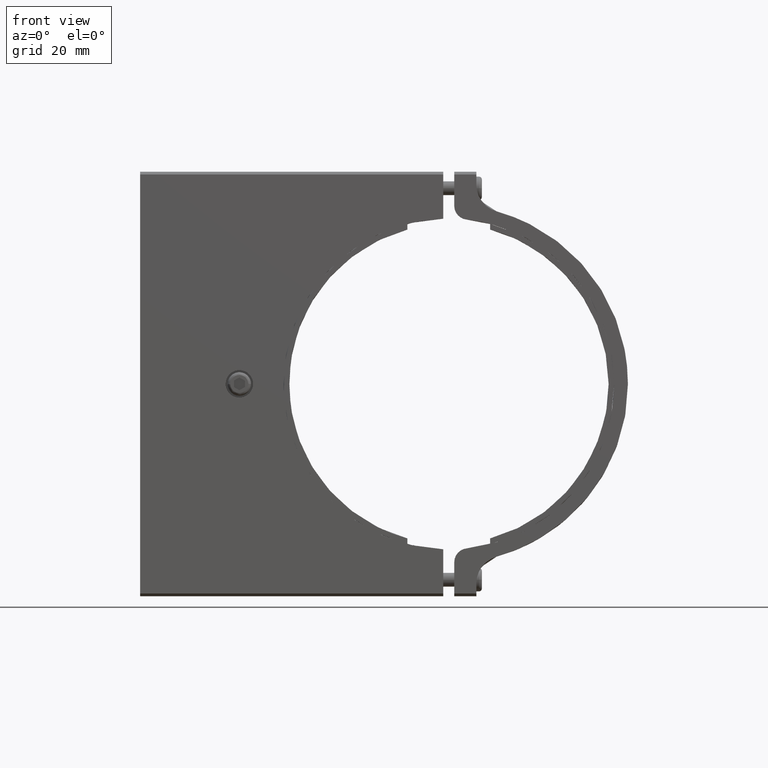
[diagram: clean part render]
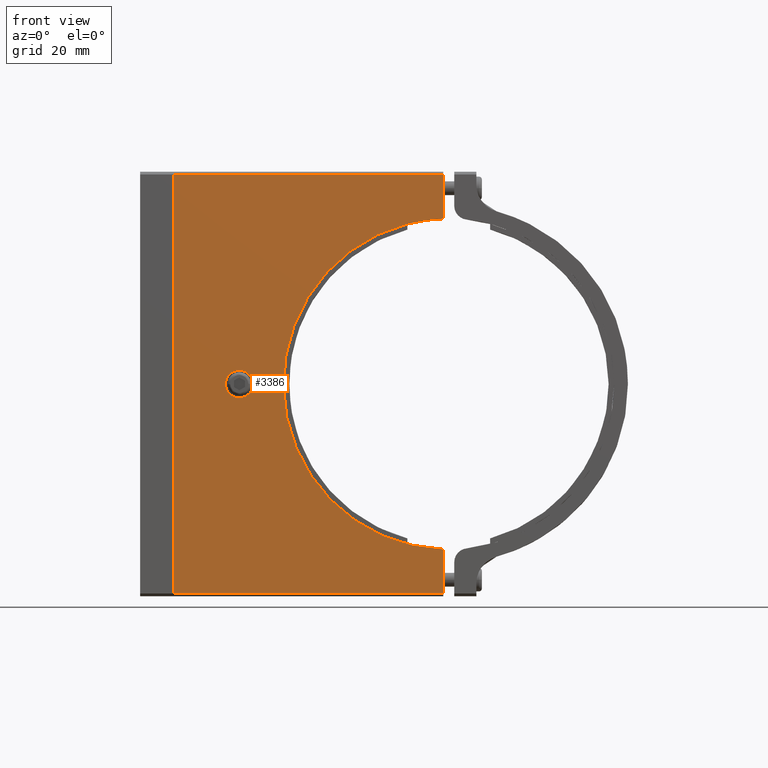
[diagram: same view with one face highlighted and labeled with its STEP entity id]
A machine part, front view. The second image highlights one B-rep face of the part: STEP entity #3386.
In plain terms, the highlighted face is a freeform B-spline surface patch.
Its self-contained STEP definition (entity closure, byte-faithful):
#4 = CARTESIAN_POINT ( 'NONE',  ( 79.17612256400001058, 12.00000000000000178, 56.40179487999999708 ) ) ;
#20 = CARTESIAN_POINT ( 'NONE',  ( 20.00017310199998377, 11.99999999999999822, 3.071240914666662380 ) ) ;
#36 = VERTEX_POINT ( 'NONE', #4983 ) ;
#163 = CARTESIAN_POINT ( 'NONE',  ( 98.00000000000000000, 12.00000000000000000, 75.99999999966210851 ) ) ;
#244 = CARTESIAN_POINT ( 'NONE',  ( 68.78667948133329446, 11.99999999999999822, 51.38603883999997635 ) ) ;
#412 = CARTESIAN_POINT ( 'NONE',  ( 97.99999999753360669, 12.00000000000000000, 59.96665740667099698 ) ) ;
#449 = CARTESIAN_POINT ( 'NONE',  ( 98.00000000000000000, 12.00000000000000000, -75.99999999966210851 ) ) ;
#452 = EDGE_CURVE ( 'NONE', #5583, #918, #5427, .T. ) ;
#545 = CARTESIAN_POINT ( 'NONE',  ( 97.99999999753360669, 12.00000000000000000, 59.96665740667099698 ) ) ;
#625 = EDGE_CURVE ( 'NONE', #837, #1874, #765, .T. ) ;
#747 = CARTESIAN_POINT ( 'NONE',  ( 41.83931875200001116, 11.99999999999999822, 15.23586222133336676 ) ) ;
#765 = B_SPLINE_CURVE_WITH_KNOTS ( 'NONE', 1,
 ( #4824, #2097 ),
 .UNSPECIFIED., .F., .F.,
 ( 2, 2 ),
 ( 0.0000000000000000000, 1.000000000000000000 ),
 .UNSPECIFIED. ) ;
#805 = CARTESIAN_POINT ( 'NONE',  ( 0.0000000000000000000, 12.00000000000000000, -76.00000002533330701 ) ) ;
#818 = CARTESIAN_POINT ( 'NONE',  ( 41.83931862133335500, 12.00000000000000178, -15.23586222133337920 ) ) ;
#828 = B_SPLINE_SURFACE_WITH_KNOTS ( 'NONE', 1, 1, ( 
 ( #969, #1524 ),
 ( #3761, #1409 ) ),
 .UNSPECIFIED., .F., .F., .F.,
 ( 2, 2 ),
 ( 2, 2 ),
 ( 0.0000000000000000000, 1.000000000000000000 ),
 ( 0.0000000000000000000, 1.000000000000000000 ),
 .UNSPECIFIED. ) ;
#837 = VERTEX_POINT ( 'NONE', #6667 ) ;
#844 = CARTESIAN_POINT ( 'NONE',  ( 98.00000000000000000, 12.00000000000000000, 75.99999999966210851 ) ) ;
#855 = CARTESIAN_POINT ( 'NONE',  ( 62.48045644399989129, 12.00000000000000178, -46.97957221599991584 ) ) ;
#918 = VERTEX_POINT ( 'NONE', #2323 ) ;
#921 = CARTESIAN_POINT ( 'NONE',  ( 18.99999999933334749, 12.00000000000000000, 1.367356190102208201E-09 ) ) ;
#969 = CARTESIAN_POINT ( 'NONE',  ( 0.0000000000000000000, 12.00000000000000000, 76.00000000000000000 ) ) ;
#970 = CARTESIAN_POINT ( 'NONE',  ( 0.0000000000000000000, 12.00000000000000000, -76.00000002533330701 ) ) ;
#1148 = CARTESIAN_POINT ( 'NONE',  ( 19.12932886666666121, 12.00000000000000178, 1.306789245333331628 ) ) ;
#1212 = CARTESIAN_POINT ( 'NONE',  ( 97.99999999753360669, 12.00000000000000000, 59.96665740667099698 ) ) ;
#1241 = CARTESIAN_POINT ( 'NONE',  ( 20.92875903533333570, 11.99999999999999822, -3.999826952000002045 ) ) ;
#1251 = CARTESIAN_POINT ( 'NONE',  ( 28.87067122800000973, 12.00000000000000000, 1.306789245333328520 ) ) ;
#1280 = CARTESIAN_POINT ( 'NONE',  ( 20.00017323266666835, 12.00000000000000178, -3.071240712000007367 ) ) ;
#1287 = CARTESIAN_POINT ( 'NONE',  ( 21.47995484133334543, 12.00000000000000178, 4.368124218666668668 ) ) ;
#1288 = B_SPLINE_CURVE_WITH_KNOTS ( 'NONE', 3,
 ( #545, #4965, #2779, #5042, #4, #3061, #244, #2511, #1300, #5314, #5816, #5277, #4806, #1410, #747, #1446, #3585, #3624, #6404, #818, #4204, #4769, #6443, #5886, #6962, #6999, #855, #6475, #4171, #2473, #3098, #5851, #7035, #4659 ),
 .UNSPECIFIED., .F., .F.,
 ( 4, 2, 2, 2, 2, 2, 2, 2, 2, 2, 2, 2, 2, 2, 2, 2, 4 ),
 ( 0.0000000000000000000, 0.1921821021918790062, 0.3843642043837580125, 0.5765463065756369909, 0.7687284087675160249, 0.9609105109593951699, 1.153092613151273982, 1.345274715343153238, 1.537456817535032494, 1.729638919726911528, 1.921821021918790562, 2.114003124110669596, 2.306185226302548408, 2.498367328494427664, 2.690549430686306476, 2.882731532878185732, 3.074913635070064988 ),
 .UNSPECIFIED. ) ;
#1300 = CARTESIAN_POINT ( 'NONE',  ( 59.54652431000000234, 12.00000000000000178, 44.47822697866665465 ) ) ;
#1376 = CARTESIAN_POINT ( 'NONE',  ( 0.0000000000000000000, 12.00000000000000000, 76.00000002533330701 ) ) ;
#1409 = CARTESIAN_POINT ( 'NONE',  ( 98.00000000000000000, 12.00000000000000000, -76.00000000000000000 ) ) ;
#1410 = CARTESIAN_POINT ( 'NONE',  ( 42.93541886200000590, 11.99999999999999822, 18.93224564533333165 ) ) ;
#1446 = CARTESIAN_POINT ( 'NONE',  ( 40.36990675199999146, 12.00000000000000000, 7.684291042666631100 ) ) ;
#1524 = CARTESIAN_POINT ( 'NONE',  ( 0.0000000000000000000, 12.00000000000000000, -76.00000000000000000 ) ) ;
#1578 = EDGE_CURVE ( 'NONE', #7188, #3737, #1288, .T. ) ;
#1702 = CARTESIAN_POINT ( 'NONE',  ( 98.00000000000000000, 12.00000000000000000, -75.99999999966210851 ) ) ;
#1777 = ORIENTED_EDGE ( 'NONE', *, *, #452, .T. ) ;
#1780 = CARTESIAN_POINT ( 'NONE',  ( 28.99999998866665152, 12.00000000000000000, 2.993106144650775211E-10 ) ) ;
#1818 = CARTESIAN_POINT ( 'NONE',  ( 26.52004512266667291, 12.00000000000000178, 4.368124016000002996 ) ) ;
#1844 = CARTESIAN_POINT ( 'NONE',  ( 28.87067122800000618, 11.99999999999999822, -1.306789245333308980 ) ) ;
#1874 = VERTEX_POINT ( 'NONE', #844 ) ;
#1877 = CARTESIAN_POINT ( 'NONE',  ( 23.34339057399999717, 12.00000000000000178, -5.000000024000000209 ) ) ;
#2097 = CARTESIAN_POINT ( 'NONE',  ( 98.00000000000000000, 12.00000000000000000, 75.99999999966210851 ) ) ;
#2215 = CARTESIAN_POINT ( 'NONE',  ( 0.0000000000000000000, 12.00000000000000000, -76.00000002533330701 ) ) ;
#2223 = EDGE_CURVE ( 'NONE', #1874, #7188, #7200, .T. ) ;
#2249 = CARTESIAN_POINT ( 'NONE',  ( 27.07124102666666587, 11.99999999999999822, 3.999826952000013147 ) ) ;
#2266 = ORIENTED_EDGE ( 'NONE', *, *, #2307, .T. ) ;
#2307 = EDGE_CURVE ( 'NONE', #918, #5583, #4714, .T. ) ;
#2323 = CARTESIAN_POINT ( 'NONE',  ( 28.99999998866665152, 12.00000000000000000, 2.993106144650775211E-10 ) ) ;
#2343 = CARTESIAN_POINT ( 'NONE',  ( 98.00000000112329701, 12.00000000000000000, -59.96665740679069501 ) ) ;
#2412 = ORIENTED_EDGE ( 'NONE', *, *, #1578, .T. ) ;
#2473 = CARTESIAN_POINT ( 'NONE',  ( 79.17612243333340416, 11.99999999999999645, -56.40179488000003971 ) ) ;
#2511 = CARTESIAN_POINT ( 'NONE',  ( 62.48045657466668246, 11.99999999999999822, 46.97957221600000111 ) ) ;
#2542 = B_SPLINE_CURVE_WITH_KNOTS ( 'NONE', 1,
 ( #1376, #970 ),
 .UNSPECIFIED., .F., .F.,
 ( 2, 2 ),
 ( 0.0000000000000000000, 1.000000000000000000 ),
 .UNSPECIFIED. ) ;
#2601 = EDGE_CURVE ( 'NONE', #3737, #36, #3202, .T. ) ;
#2779 = CARTESIAN_POINT ( 'NONE',  ( 90.33230941466666764, 12.00000000000000178, 59.34081327466666522 ) ) ;
#2905 = CARTESIAN_POINT ( 'NONE',  ( 28.99999996599999719, 12.00000000000000000, 0.6566093973333374523 ) ) ;
#2941 = CARTESIAN_POINT ( 'NONE',  ( 24.65660925933333303, 12.00000000000000178, 5.000000024000000209 ) ) ;
#2968 = CARTESIAN_POINT ( 'NONE',  ( 24.65660938999999985, 11.99999999999999822, -5.000000024000001986 ) ) ;
#2978 = CARTESIAN_POINT ( 'NONE',  ( 20.92875916600001318, 12.00000000000000178, 3.999826749333347031 ) ) ;
#3061 = CARTESIAN_POINT ( 'NONE',  ( 72.14435757200001831, 11.99999999999999822, 53.28094912000000960 ) ) ;
#3098 = CARTESIAN_POINT ( 'NONE',  ( 82.83391533199998946, 12.00000000000000178, -57.62049895999999194 ) ) ;
#3202 = B_SPLINE_CURVE_WITH_KNOTS ( 'NONE', 1,
 ( #2343, #1702 ),
 .UNSPECIFIED., .F., .F.,
 ( 2, 2 ),
 ( 0.0000000000000000000, 1.000000000000000000 ),
 .UNSPECIFIED. ) ;
#3386 = ADVANCED_FACE ( 'NONE', ( #4918, #7034 ), #828, .T. ) ;
#3393 = CARTESIAN_POINT ( 'NONE',  ( 18.99999999800000339, 12.00000000000000178, 0.6566093973333262390 ) ) ;
#3505 = EDGE_LOOP ( 'NONE', ( #2266, #1777 ) ) ;
#3585 = CARTESIAN_POINT ( 'NONE',  ( 39.99999996999998331, 12.00000000000000178, 3.846602389333415584 ) ) ;
#3599 = CARTESIAN_POINT ( 'NONE',  ( 22.69321078266667158, 12.00000000000000178, -4.870671279999992720 ) ) ;
#3624 = CARTESIAN_POINT ( 'NONE',  ( 39.99999997000000462, 12.00000000000000000, -3.846602389333410699 ) ) ;
#3634 = CARTESIAN_POINT ( 'NONE',  ( 25.30678918133333966, 12.00000000000000178, -4.870671077333328824 ) ) ;
#3737 = VERTEX_POINT ( 'NONE', #7051 ) ;
#3761 = CARTESIAN_POINT ( 'NONE',  ( 98.00000000000000000, 12.00000000000000000, 76.00000000000000000 ) ) ;
#4044 = CARTESIAN_POINT ( 'NONE',  ( 28.99999996600001140, 12.00000000000000178, -0.6566093973333149147 ) ) ;
#4083 = CARTESIAN_POINT ( 'NONE',  ( 28.99999998866665152, 12.00000000000000000, 2.993106144650775211E-10 ) ) ;
#4116 = CARTESIAN_POINT ( 'NONE',  ( 27.07124102666665877, 12.00000000000000178, -3.999826749333347031 ) ) ;
#4171 = CARTESIAN_POINT ( 'NONE',  ( 72.14435770266662473, 12.00000000000000178, -53.28094911999998118 ) ) ;
#4204 = CARTESIAN_POINT ( 'NONE',  ( 42.93541886200000590, 12.00000000000000178, -18.93224544266665887 ) ) ;
#4293 = EDGE_LOOP ( 'NONE', ( #5103, #6899, #4695, #2412, #6217, #6606 ) ) ;
#4504 = CARTESIAN_POINT ( 'NONE',  ( 19.63187574133334223, 12.00000000000000178, 2.520045138666669349 ) ) ;
#4634 = EDGE_CURVE ( 'NONE', #36, #5639, #5626, .T. ) ;
#4659 = CARTESIAN_POINT ( 'NONE',  ( 98.00000000112329701, 12.00000000000000000, -59.96665740679069501 ) ) ;
#4671 = CARTESIAN_POINT ( 'NONE',  ( 18.99999999933334749, 12.00000000000000000, 1.367356190102208201E-09 ) ) ;
#4695 = ORIENTED_EDGE ( 'NONE', *, *, #2223, .T. ) ;
#4714 = B_SPLINE_CURVE_WITH_KNOTS ( 'NONE', 3,
 ( #1780, #2905, #1251, #5157, #6848, #2249, #1818, #5734, #2941, #5193, #6882, #1287, #2978, #20, #4504, #1148, #3393, #921 ),
 .UNSPECIFIED., .F., .F.,
 ( 4, 2, 2, 2, 2, 2, 2, 2, 4 ),
 ( 0.0000000000000000000, 0.3926990816987244171, 0.7853981633974488341, 1.178097245096173307, 1.570796326794897668, 1.963495408493622030, 2.356194490192346613, 2.748893571891070753, 3.141592653589795336 ),
 .UNSPECIFIED. ) ;
#4747 = CARTESIAN_POINT ( 'NONE',  ( 28.36812409199999863, 12.00000000000000000, -2.520045138666691553 ) ) ;
#4769 = CARTESIAN_POINT ( 'NONE',  ( 45.82013823800001262, 11.99999999999999822, -26.06413124533334269 ) ) ;
#4806 = CARTESIAN_POINT ( 'NONE',  ( 45.82013823800001973, 12.00000000000000355, 26.06413104266668057 ) ) ;
#4824 = CARTESIAN_POINT ( 'NONE',  ( 0.0000000000000000000, 12.00000000000000000, 76.00000002533330701 ) ) ;
#4918 = FACE_BOUND ( 'NONE', #3505, .T. ) ;
#4965 = CARTESIAN_POINT ( 'NONE',  ( 94.15553526400000806, 12.00000000000000178, 59.83843730933335792 ) ) ;
#4983 = CARTESIAN_POINT ( 'NONE',  ( 98.00000000000000000, 12.00000000000000000, -75.99999999966210851 ) ) ;
#5042 = CARTESIAN_POINT ( 'NONE',  ( 82.83391520133334041, 12.00000000000000178, 57.62049875733331561 ) ) ;
#5103 = ORIENTED_EDGE ( 'NONE', *, *, #6827, .F. ) ;
#5151 = CARTESIAN_POINT ( 'NONE',  ( 27.99982682933334033, 12.00000000000000178, -3.071240914666661048 ) ) ;
#5157 = CARTESIAN_POINT ( 'NONE',  ( 28.36812409199999863, 11.99999999999999645, 2.520045138666669793 ) ) ;
#5193 = CARTESIAN_POINT ( 'NONE',  ( 23.34339070466667465, 11.99999999999999822, 5.000000024000001986 ) ) ;
#5277 = CARTESIAN_POINT ( 'NONE',  ( 47.60207292399998380, 12.00000000000000000, 29.48310676533331076 ) ) ;
#5292 = CARTESIAN_POINT ( 'NONE',  ( 26.52004512266666580, 11.99999999999999822, -4.368124218666668668 ) ) ;
#5314 = CARTESIAN_POINT ( 'NONE',  ( 54.19804103000001305, 11.99999999999999822, 38.94838753333335291 ) ) ;
#5427 = B_SPLINE_CURVE_WITH_KNOTS ( 'NONE', 3,
 ( #4671, #6385, #5759, #6906, #1280, #1241, #6311, #3599, #1877, #2968, #3634, #5292, #4116, #5151, #4747, #1844, #4044, #4083 ),
 .UNSPECIFIED., .F., .F.,
 ( 4, 2, 2, 2, 2, 2, 2, 2, 4 ),
 ( 0.0000000000000000000, 0.3926990816987244171, 0.7853981633974488341, 1.178097245096173307, 1.570796326794897668, 1.963495408493622030, 2.356194490192346613, 2.748893571891070753, 3.141592653589795336 ),
 .UNSPECIFIED. ) ;
#5583 = VERTEX_POINT ( 'NONE', #6181 ) ;
#5626 = B_SPLINE_CURVE_WITH_KNOTS ( 'NONE', 1,
 ( #449, #2215 ),
 .UNSPECIFIED., .F., .F.,
 ( 2, 2 ),
 ( 0.0000000000000000000, 1.000000000000000000 ),
 .UNSPECIFIED. ) ;
#5639 = VERTEX_POINT ( 'NONE', #805 ) ;
#5734 = CARTESIAN_POINT ( 'NONE',  ( 25.30678918133332900, 11.99999999999999822, 4.870671279999992720 ) ) ;
#5759 = CARTESIAN_POINT ( 'NONE',  ( 19.12932873600000505, 12.00000000000000533, -1.306789245333340288 ) ) ;
#5816 = CARTESIAN_POINT ( 'NONE',  ( 51.79588335600000448, 12.00000000000000178, 35.93270793866668811 ) ) ;
#5851 = CARTESIAN_POINT ( 'NONE',  ( 90.33230928400004700, 12.00000000000000178, -59.34081307200001731 ) ) ;
#5886 = CARTESIAN_POINT ( 'NONE',  ( 51.79588335599997606, 11.99999999999999822, -35.93270773599996204 ) ) ;
#6181 = CARTESIAN_POINT ( 'NONE',  ( 18.99999999933334749, 12.00000000000000000, 1.367356190102208201E-09 ) ) ;
#6217 = ORIENTED_EDGE ( 'NONE', *, *, #2601, .T. ) ;
#6311 = CARTESIAN_POINT ( 'NONE',  ( 21.47995484133333122, 12.00000000000000355, -4.368124016000003884 ) ) ;
#6385 = CARTESIAN_POINT ( 'NONE',  ( 18.99999999800000339, 11.99999999999999467, -0.6566093973333263500 ) ) ;
#6404 = CARTESIAN_POINT ( 'NONE',  ( 40.36990688266665472, 12.00000000000000178, -7.684291042666607119 ) ) ;
#6443 = CARTESIAN_POINT ( 'NONE',  ( 47.60207292400000512, 12.00000000000000178, -29.48310696800001551 ) ) ;
#6475 = CARTESIAN_POINT ( 'NONE',  ( 68.78667961200009984, 12.00000000000000178, -51.38603884000005451 ) ) ;
#6606 = ORIENTED_EDGE ( 'NONE', *, *, #4634, .T. ) ;
#6667 = CARTESIAN_POINT ( 'NONE',  ( 0.0000000000000000000, 12.00000000000000000, 76.00000002533330701 ) ) ;
#6827 = EDGE_CURVE ( 'NONE', #837, #5639, #2542, .T. ) ;
#6848 = CARTESIAN_POINT ( 'NONE',  ( 27.99982682933334388, 12.00000000000000000, 3.071240711999996265 ) ) ;
#6882 = CARTESIAN_POINT ( 'NONE',  ( 22.69321078266666447, 12.00000000000000178, 4.870671077333328824 ) ) ;
#6899 = ORIENTED_EDGE ( 'NONE', *, *, #625, .T. ) ;
#6906 = CARTESIAN_POINT ( 'NONE',  ( 19.63187587199999484, 12.00000000000000178, -2.520045138666658691 ) ) ;
#6962 = CARTESIAN_POINT ( 'NONE',  ( 54.19804089933337110, 12.00000000000000178, -38.94838773600005055 ) ) ;
#6999 = CARTESIAN_POINT ( 'NONE',  ( 59.54652444066663719, 12.00000000000000355, -44.47822677599997832 ) ) ;
#7034 = FACE_OUTER_BOUND ( 'NONE', #4293, .T. ) ;
#7035 = CARTESIAN_POINT ( 'NONE',  ( 94.15553526400002227, 12.00000000000000533, -59.83843730933335081 ) ) ;
#7051 = CARTESIAN_POINT ( 'NONE',  ( 98.00000000112329701, 12.00000000000000000, -59.96665740679069501 ) ) ;
#7188 = VERTEX_POINT ( 'NONE', #412 ) ;
#7200 = B_SPLINE_CURVE_WITH_KNOTS ( 'NONE', 1,
 ( #163, #1212 ),
 .UNSPECIFIED., .F., .F.,
 ( 2, 2 ),
 ( 0.0000000000000000000, 1.000000000000000000 ),
 .UNSPECIFIED. ) ;